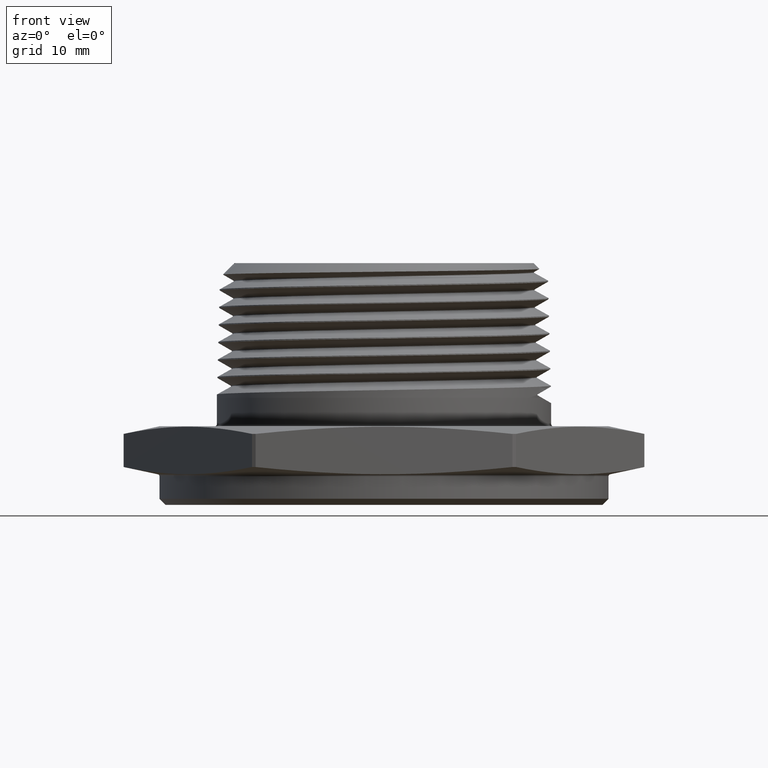
[diagram: clean part render]
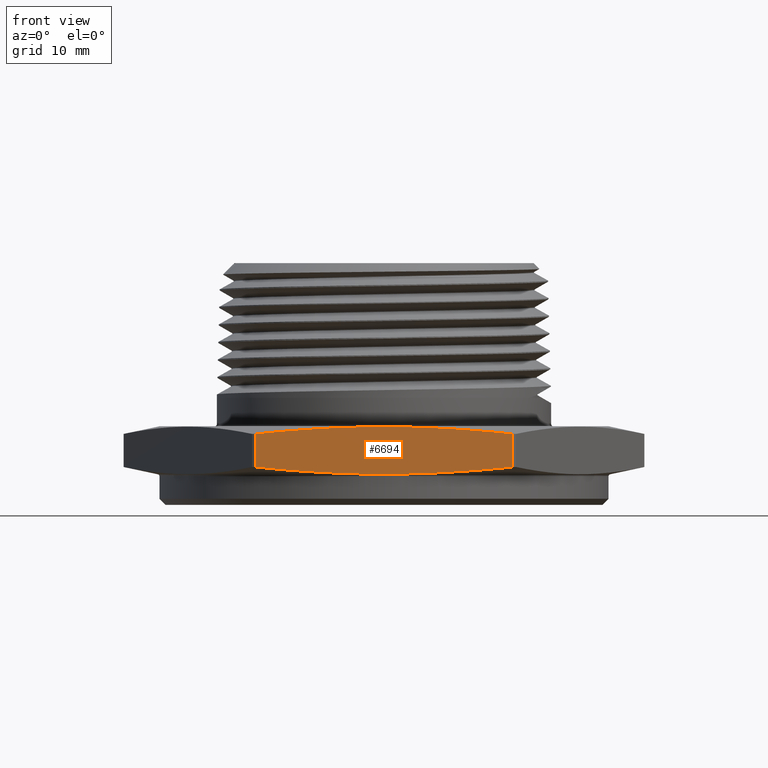
[diagram: same view with one face highlighted and labeled with its STEP entity id]
A machine part, front view. The second image highlights one B-rep face of the part: STEP entity #6694.
In plain terms, the highlighted planar face has unit normal (-0, 1, 0).
Its self-contained STEP definition (entity closure, byte-faithful):
#8 = LINE ( 'NONE', #4222, #18 ) ;
#18 = VECTOR ( 'NONE', #4216, 39.37007874015748100 ) ;
#186 = FACE_OUTER_BOUND ( 'NONE', #2496, .T. ) ;
#269 = AXIS2_PLACEMENT_3D ( 'NONE', #5777, #5782, #5783 ) ;
#472 = ORIENTED_EDGE ( 'NONE', *, *, #4037, .T. ) ;
#477 = ORIENTED_EDGE ( 'NONE', *, *, #3973, .T. ) ;
#478 = ORIENTED_EDGE ( 'NONE', *, *, #3998, .T. ) ;
#479 = ORIENTED_EDGE ( 'NONE', *, *, #4001, .T. ) ;
#2496 = EDGE_LOOP ( 'NONE', ( #477, #478, #479, #472 ) ) ;
#3973 = EDGE_CURVE ( 'NONE', #6321, #6286, #6638, .T. ) ;
#3998 = EDGE_CURVE ( 'NONE', #6286, #6295, #7716, .T. ) ;
#4001 = EDGE_CURVE ( 'NONE', #6295, #6333, #6644, .T. ) ;
#4037 = EDGE_CURVE ( 'NONE', #6333, #6321, #8, .T. ) ;
#4216 = DIRECTION ( 'NONE',  ( -1.254986547952384500E-016, -0.0000000000000000000, -1.000000000000000000 ) ) ;
#4222 = CARTESIAN_POINT ( 'NONE',  ( -0.6374343438597276400, -1.124999999999999600, 7.999715267468129200E-017 ) ) ;
#5389 = DIRECTION ( 'NONE',  ( 1.254986547952384500E-016, 0.0000000000000000000, 1.000000000000000000 ) ) ;
#5392 = CARTESIAN_POINT ( 'NONE',  ( 0.4253646002358997800, -1.124999999999999800, 0.2222750160077573700 ) ) ;
#5393 = CARTESIAN_POINT ( 'NONE',  ( 0.6374343438597278600, -1.124999999999999600, -7.999715267468129200E-017 ) ) ;
#5398 = CARTESIAN_POINT ( 'NONE',  ( 0.5314230091790969100, -1.124999999999999800, 0.2132652181881039800 ) ) ;
#5402 = CARTESIAN_POINT ( 'NONE',  ( 0.6374343438597278600, -1.124999999999999600, 0.2021568324111265600 ) ) ;
#5404 = CARTESIAN_POINT ( 'NONE',  ( 0.2131198376507331100, -1.124999999999999800, 0.2345907898682854900 ) ) ;
#5405 = CARTESIAN_POINT ( 'NONE',  ( 0.1069326792767555100, -1.124999999999999800, 0.2378608906599504700 ) ) ;
#5406 = CARTESIAN_POINT ( 'NONE',  ( -0.1055877376458510300, -1.125000000000000000, 0.2378878926651545000 ) ) ;
#5407 = CARTESIAN_POINT ( 'NONE',  ( -0.2119210193021721100, -1.124999999999999800, 0.2346437637292744200 ) ) ;
#5408 = CARTESIAN_POINT ( 'NONE',  ( -0.4247182800637260300, -1.125000000000000000, 0.2223289654639876700 ) ) ;
#5409 = CARTESIAN_POINT ( 'NONE',  ( -0.5312776201662986500, -1.125000000000000000, 0.2132804527594522600 ) ) ;
#5410 = CARTESIAN_POINT ( 'NONE',  ( -0.6374343438597276400, -1.124999999999999600, 0.2021568324111267000 ) ) ;
#5627 = CARTESIAN_POINT ( 'NONE',  ( 0.6374343438597278600, -1.124999999999999600, 0.2021568324111265600 ) ) ;
#5628 = CARTESIAN_POINT ( 'NONE',  ( 0.6374343438597278600, -1.124999999999999600, 0.03784316758887298200 ) ) ;
#5636 = CARTESIAN_POINT ( 'NONE',  ( -0.6374343438597276400, -1.124999999999999600, 0.03784316758887322500 ) ) ;
#5658 = CARTESIAN_POINT ( 'NONE',  ( -0.6374343438597276400, -1.124999999999999600, 0.2021568324111267000 ) ) ;
#5776 = PLANE ( 'NONE',  #269 ) ;
#5777 = CARTESIAN_POINT ( 'NONE',  ( -0.6495190528383287800, -1.124999999999999800, 0.2399999999999999900 ) ) ;
#5782 = DIRECTION ( 'NONE',  ( -1.051488783018134600E-016, 1.000000000000000000, 0.0000000000000000000 ) ) ;
#5783 = DIRECTION ( 'NONE',  ( -1.000000000000000000, -1.051488783018134600E-016, 0.0000000000000000000 ) ) ;
#6286 = VERTEX_POINT ( 'NONE', #5628 ) ;
#6295 = VERTEX_POINT ( 'NONE', #5627 ) ;
#6321 = VERTEX_POINT ( 'NONE', #5636 ) ;
#6333 = VERTEX_POINT ( 'NONE', #5658 ) ;
#6638 = B_SPLINE_CURVE_WITH_KNOTS ( 'NONE', 3,
 ( #7020, #7012, #7018, #7007, #7009, #7013, #7015, #7005, #7003, #6999 ),
 .UNSPECIFIED., .F., .F.,
 ( 4, 2, 2, 2, 4 ),
 ( 0.02769101180784034500, 0.03581873144866942700, 0.04394645108949851700, 0.05207417073032760000, 0.06020189037115668300 ),
 .UNSPECIFIED. ) ;
#6644 = B_SPLINE_CURVE_WITH_KNOTS ( 'NONE', 3,
 ( #5402, #5398, #5392, #5404, #5405, #5406, #5407, #5408, #5409, #5410 ),
 .UNSPECIFIED., .F., .F.,
 ( 4, 2, 2, 2, 4 ),
 ( 0.06266755591143606500, 0.07078732428279715900, 0.07890709265415826700, 0.08702686102551936100, 0.09514662939688045600 ),
 .UNSPECIFIED. ) ;
#6694 = ADVANCED_FACE ( 'NONE', ( #186 ), #5776, .F. ) ;
#6999 = CARTESIAN_POINT ( 'NONE',  ( 0.6374343438597278600, -1.124999999999999600, 0.03784316758887298200 ) ) ;
#7003 = CARTESIAN_POINT ( 'NONE',  ( 0.5314230091790969100, -1.124999999999999800, 0.02673478181189557100 ) ) ;
#7005 = CARTESIAN_POINT ( 'NONE',  ( 0.4253646002358995600, -1.125000000000000000, 0.01772498399224218000 ) ) ;
#7007 = CARTESIAN_POINT ( 'NONE',  ( -0.2119210193021716400, -1.124999999999999600, 0.005356236270725288900 ) ) ;
#7009 = CARTESIAN_POINT ( 'NONE',  ( -0.1055877376458503900, -1.124999999999999800, 0.002112107334845256300 ) ) ;
#7012 = CARTESIAN_POINT ( 'NONE',  ( -0.5312776201662980900, -1.124999999999999800, 0.02671954724054760200 ) ) ;
#7013 = CARTESIAN_POINT ( 'NONE',  ( 0.1069326792767559300, -1.124999999999999600, 0.002139109340049192900 ) ) ;
#7015 = CARTESIAN_POINT ( 'NONE',  ( 0.2131198376507331100, -1.124999999999999800, 0.005409210131714172800 ) ) ;
#7018 = CARTESIAN_POINT ( 'NONE',  ( -0.4247182800637253100, -1.125000000000000000, 0.01767103453601214700 ) ) ;
#7020 = CARTESIAN_POINT ( 'NONE',  ( -0.6374343438597276400, -1.124999999999999600, 0.03784316758887322500 ) ) ;
#7711 = VECTOR ( 'NONE', #5389, 39.37007874015748100 ) ;
#7716 = LINE ( 'NONE', #5393, #7711 ) ;